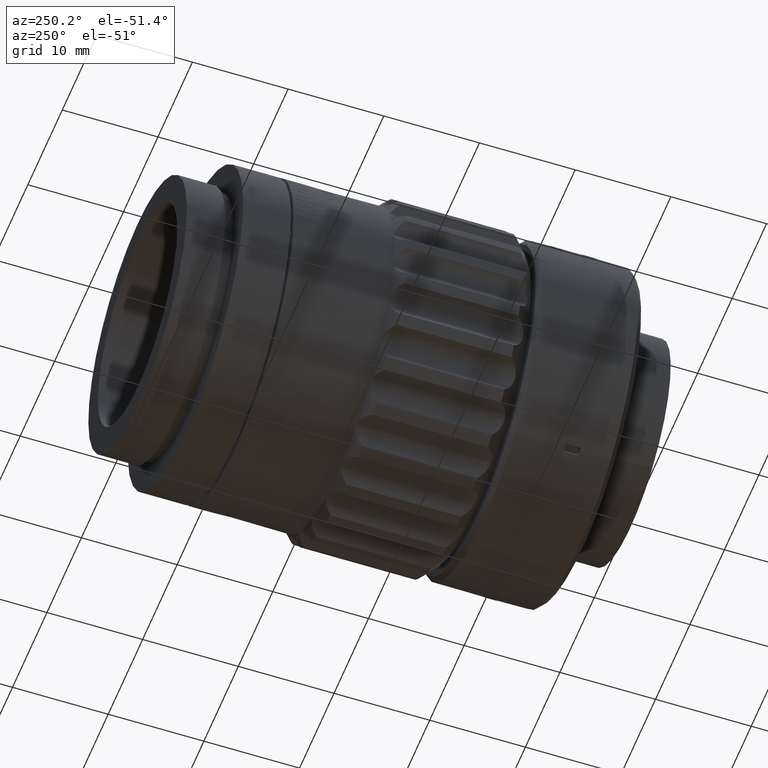
[diagram: clean part render]
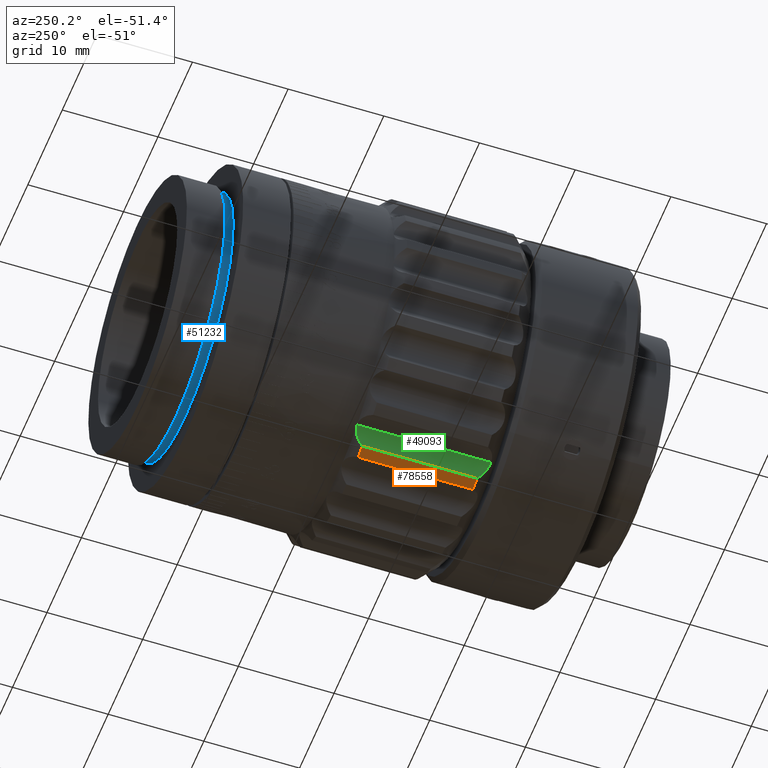
[diagram: same view with three faces highlighted in distinct colors, each labeled with its STEP entity id]
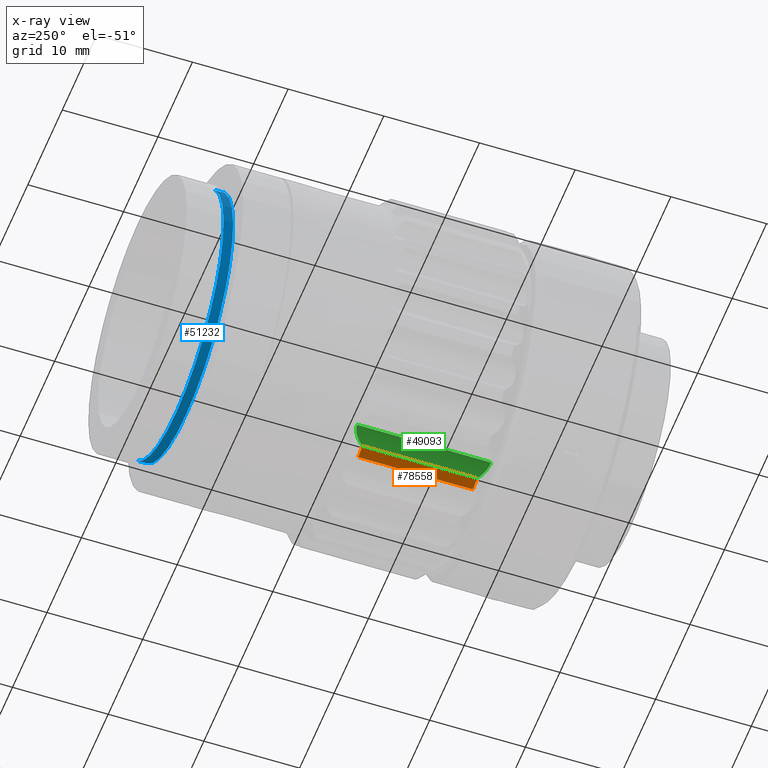
[diagram: x-ray of the same camera — body ghosted, the three highlighted faces saturated]
A machine part, auxiliary view with three faces highlighted in distinct colors.
The next image is the same camera in x-ray (body ghosted, the three faces saturated) — at least one of them is partly hidden behind the body in this view.
Their STEP definitions:

[orange] entity #78558 — the highlighted cylindrical surface (partial cylindrical patch) has radius 17.75 mm, axis along (-0, -1, 0).
#14481 = DIRECTION ( 'NONE',  ( 0.0000000000000000000, 0.0000000000000000000, 1.000000000000000000 ) ) ;
#14629 = ORIENTED_EDGE ( 'NONE', *, *, #19718, .T. ) ;
#17919 = CARTESIAN_POINT ( 'NONE',  ( 0.0000000000000000000, -15.21457821189761400, 0.0000000000000000000 ) ) ;
#17928 = CARTESIAN_POINT ( 'NONE',  ( -14.46100386837101900, -15.21457821189761400, 10.29280657153133100 ) ) ;
#18348 = CARTESIAN_POINT ( 'NONE',  ( -13.68487090487563900, -15.21457821189761400, 11.30428274225695000 ) ) ;
#19718 = EDGE_CURVE ( 'NONE', #49602, #95844, #38759, .T. ) ;
#21553 = EDGE_CURVE ( 'NONE', #33140, #95844, #64872, .T. ) ;
#23641 = ORIENTED_EDGE ( 'NONE', *, *, #90402, .T. ) ;
#24560 = AXIS2_PLACEMENT_3D ( 'NONE', #17919, #93265, #68387 ) ;
#26183 = CYLINDRICAL_SURFACE ( 'NONE', #37108, 17.75000000000000400 ) ;
#26899 = CARTESIAN_POINT ( 'NONE',  ( 0.0000000000000000000, -13.71457821189758900, 0.0000000000000000000 ) ) ;
#31313 = DIRECTION ( 'NONE',  ( 0.0000000000000000000, 1.000000000000000000, 0.0000000000000000000 ) ) ;
#32461 = DIRECTION ( 'NONE',  ( 0.0000000000000000000, -1.000000000000000000, -0.0000000000000000000 ) ) ;
#32747 = DIRECTION ( 'NONE',  ( 0.0000000000000000000, -1.000000000000000000, 0.0000000000000000000 ) ) ;
#33140 = VERTEX_POINT ( 'NONE', #101490 ) ;
#33773 = CIRCLE ( 'NONE', #73951, 17.75000000000000400 ) ;
#37108 = AXIS2_PLACEMENT_3D ( 'NONE', #26899, #32747, #94567 ) ;
#38759 = CIRCLE ( 'NONE', #24560, 17.75000000000000400 ) ;
#40162 = CARTESIAN_POINT ( 'NONE',  ( -13.68487090487564500, -15.71457821189758300, 11.30428274225694300 ) ) ;
#49593 = CARTESIAN_POINT ( 'NONE',  ( -13.68487090487564500, -27.21457821189756700, 11.30428274225694300 ) ) ;
#49602 = VERTEX_POINT ( 'NONE', #18348 ) ;
#49723 = ORIENTED_EDGE ( 'NONE', *, *, #96199, .F. ) ;
#56678 = DIRECTION ( 'NONE',  ( -0.0000000000000000000, 1.000000000000000000, 0.0000000000000000000 ) ) ;
#61988 = CARTESIAN_POINT ( 'NONE',  ( -14.46100386837101800, -15.71457821189758300, 10.29280657153133300 ) ) ;
#64872 = LINE ( 'NONE', #61988, #101487 ) ;
#65086 = LINE ( 'NONE', #40162, #106932 ) ;
#68387 = DIRECTION ( 'NONE',  ( 0.0000000000000000000, 0.0000000000000000000, -1.000000000000000000 ) ) ;
#73951 = AXIS2_PLACEMENT_3D ( 'NONE', #98948, #31313, #14481 ) ;
#78558 = ADVANCED_FACE ( 'NONE', ( #86350 ), #26183, .T. ) ;
#85052 = VERTEX_POINT ( 'NONE', #49593 ) ;
#86350 = FACE_OUTER_BOUND ( 'NONE', #102177, .T. ) ;
#89488 = ORIENTED_EDGE ( 'NONE', *, *, #21553, .F. ) ;
#90402 = EDGE_CURVE ( 'NONE', #33140, #85052, #33773, .T. ) ;
#93265 = DIRECTION ( 'NONE',  ( -0.0000000000000000000, -1.000000000000000000, -0.0000000000000000000 ) ) ;
#94567 = DIRECTION ( 'NONE',  ( 0.0000000000000000000, 0.0000000000000000000, -1.000000000000000000 ) ) ;
#95844 = VERTEX_POINT ( 'NONE', #17928 ) ;
#96199 = EDGE_CURVE ( 'NONE', #49602, #85052, #65086, .T. ) ;
#98948 = CARTESIAN_POINT ( 'NONE',  ( 0.0000000000000000000, -27.21457821189756700, 0.0000000000000000000 ) ) ;
#101487 = VECTOR ( 'NONE', #56678, 1000.000000000000000 ) ;
#101490 = CARTESIAN_POINT ( 'NONE',  ( -14.46100386837101800, -27.21457821189756700, 10.29280657153133300 ) ) ;
#102177 = EDGE_LOOP ( 'NONE', ( #49723, #14629, #89488, #23641 ) ) ;
#106932 = VECTOR ( 'NONE', #32461, 1000.000000000000000 ) ;

[blue] entity #51232 — the highlighted cylindrical surface (partial cylindrical patch) has radius 13.85 mm, axis along (0, 1, 0).
#2826 = CARTESIAN_POINT ( 'NONE',  ( 0.0000000000000000000, 18.51240201808208100, 0.0000000000000000000 ) ) ;
#4788 = DIRECTION ( 'NONE',  ( -0.0000000000000000000, 1.000000000000000000, -0.0000000000000000000 ) ) ;
#8420 = DIRECTION ( 'NONE',  ( -0.0000000000000000000, 1.000000000000000000, -0.0000000000000000000 ) ) ;
#9976 = CIRCLE ( 'NONE', #89678, 13.85000000000000000 ) ;
#10517 = DIRECTION ( 'NONE',  ( 0.0000000000000000000, 0.0000000000000000000, 1.000000000000000000 ) ) ;
#15574 = DIRECTION ( 'NONE',  ( -0.0000000000000000000, 1.000000000000000000, -0.0000000000000000000 ) ) ;
#18517 = DIRECTION ( 'NONE',  ( 0.0000000000000000000, 0.0000000000000000000, 1.000000000000000000 ) ) ;
#18820 = EDGE_CURVE ( 'NONE', #92552, #99196, #72861, .T. ) ;
#18879 = DIRECTION ( 'NONE',  ( -0.0000000000000000000, 1.000000000000000000, -0.0000000000000000000 ) ) ;
#19379 = ORIENTED_EDGE ( 'NONE', *, *, #33405, .F. ) ;
#20398 = DIRECTION ( 'NONE',  ( -0.0000000000000000000, 1.000000000000000000, -0.0000000000000000000 ) ) ;
#20779 = CARTESIAN_POINT ( 'NONE',  ( 1.696135816819084000E-015, 19.51240201808208100, -13.85000000000000000 ) ) ;
#24357 = CARTESIAN_POINT ( 'NONE',  ( 1.696135816819084200E-015, 18.51240201808208100, -13.85000000000000100 ) ) ;
#33405 = EDGE_CURVE ( 'NONE', #49858, #50922, #64594, .T. ) ;
#36808 = FACE_OUTER_BOUND ( 'NONE', #85866, .T. ) ;
#37767 = ORIENTED_EDGE ( 'NONE', *, *, #94307, .T. ) ;
#41903 = AXIS2_PLACEMENT_3D ( 'NONE', #59848, #18879, #18517 ) ;
#42588 = AXIS2_PLACEMENT_3D ( 'NONE', #2826, #20398, #10517 ) ;
#45352 = CARTESIAN_POINT ( 'NONE',  ( 0.0000000000000000000, 19.51240201808208100, 13.85000000000000000 ) ) ;
#49858 = VERTEX_POINT ( 'NONE', #99071 ) ;
#50922 = VERTEX_POINT ( 'NONE', #45352 ) ;
#51232 = ADVANCED_FACE ( 'NONE', ( #36808 ), #59041, .T. ) ;
#58584 = CARTESIAN_POINT ( 'NONE',  ( 0.0000000000000000000, 19.51240201808208100, 0.0000000000000000000 ) ) ;
#59041 = CYLINDRICAL_SURFACE ( 'NONE', #41903, 13.85000000000000100 ) ;
#59848 = CARTESIAN_POINT ( 'NONE',  ( 0.0000000000000000000, 27.76768902714551100, 0.0000000000000000000 ) ) ;
#64594 = LINE ( 'NONE', #104632, #94741 ) ;
#66259 = DIRECTION ( 'NONE',  ( 0.0000000000000000000, 0.0000000000000000000, 1.000000000000000000 ) ) ;
#72861 = LINE ( 'NONE', #73745, #83329 ) ;
#73745 = CARTESIAN_POINT ( 'NONE',  ( 1.696135816819084200E-015, 27.76768902714551100, -13.85000000000000100 ) ) ;
#79908 = ORIENTED_EDGE ( 'NONE', *, *, #18820, .T. ) ;
#83329 = VECTOR ( 'NONE', #15574, 1000.000000000000000 ) ;
#85866 = EDGE_LOOP ( 'NONE', ( #37767, #79908, #90996, #19379 ) ) ;
#89678 = AXIS2_PLACEMENT_3D ( 'NONE', #58584, #8420, #66259 ) ;
#90996 = ORIENTED_EDGE ( 'NONE', *, *, #98890, .F. ) ;
#91450 = CIRCLE ( 'NONE', #42588, 13.85000000000000100 ) ;
#92552 = VERTEX_POINT ( 'NONE', #24357 ) ;
#94307 = EDGE_CURVE ( 'NONE', #49858, #92552, #91450, .T. ) ;
#94741 = VECTOR ( 'NONE', #4788, 1000.000000000000000 ) ;
#98890 = EDGE_CURVE ( 'NONE', #50922, #99196, #9976, .T. ) ;
#99071 = CARTESIAN_POINT ( 'NONE',  ( 0.0000000000000000000, 18.51240201808208100, 13.85000000000000100 ) ) ;
#99196 = VERTEX_POINT ( 'NONE', #20779 ) ;
#104632 = CARTESIAN_POINT ( 'NONE',  ( 0.0000000000000000000, 27.76768902714551100, 13.85000000000000100 ) ) ;

[green] entity #49093 — the highlighted cylindrical surface (edge-blend (fillet) strip) has radius 2 mm, axis along (0, -1, 0).
#72 = DIRECTION ( 'NONE',  ( 0.0000000000000000000, -1.000000000000000000, -0.0000000000000000000 ) ) ;
#2969 = VECTOR ( 'NONE', #6910, 1000.000000000000000 ) ;
#3323 = VERTEX_POINT ( 'NONE', #104542 ) ;
#3443 = CARTESIAN_POINT ( 'NONE',  ( -11.97830828733459400, -14.21457821189758700, 11.70976888241473000 ) ) ;
#6910 = DIRECTION ( 'NONE',  ( 0.0000000000000000000, -1.000000000000000000, -0.0000000000000000000 ) ) ;
#8048 = CARTESIAN_POINT ( 'NONE',  ( -12.37389645353067300, -28.09789642735480100, 11.46207549619611400 ) ) ;
#11135 = CARTESIAN_POINT ( 'NONE',  ( -11.84403858487468100, -14.21457821189758700, 11.84403858487463900 ) ) ;
#11852 = CARTESIAN_POINT ( 'NONE',  ( -13.09833012493180200, -14.73653600034824000, 11.25894887405860500 ) ) ;
#12417 = AXIS2_PLACEMENT_3D ( 'NONE', #50173, #72, #99207 ) ;
#16518 = CARTESIAN_POINT ( 'NONE',  ( -12.21392601354691000, -28.15453043203922300, 11.55011910756309800 ) ) ;
#18348 = CARTESIAN_POINT ( 'NONE',  ( -13.68487090487563900, -15.21457821189761400, 11.30428274225695000 ) ) ;
#19901 = CARTESIAN_POINT ( 'NONE',  ( -13.68487090487563900, -15.21457821189761400, 11.30428274225695000 ) ) ;
#20163 = ORIENTED_EDGE ( 'NONE', *, *, #63374, .T. ) ;
#23413 = CARTESIAN_POINT ( 'NONE',  ( -11.84403858487468100, -2.714578211897588300, 11.84403858487463900 ) ) ;
#28686 = CARTESIAN_POINT ( 'NONE',  ( -12.37313360358124500, -14.33096256588668800, 11.46246015406018300 ) ) ;
#29040 = CARTESIAN_POINT ( 'NONE',  ( -12.93904786792937000, -14.62764577598170500, 11.27698673400300000 ) ) ;
#32461 = DIRECTION ( 'NONE',  ( 0.0000000000000000000, -1.000000000000000000, -0.0000000000000000000 ) ) ;
#33333 = CARTESIAN_POINT ( 'NONE',  ( -12.13595866045166400, -28.17661992392367400, 11.60011940693261000 ) ) ;
#33679 = EDGE_CURVE ( 'NONE', #3323, #80602, #61860, .T. ) ;
#34385 = ORIENTED_EDGE ( 'NONE', *, *, #96199, .T. ) ;
#40162 = CARTESIAN_POINT ( 'NONE',  ( -13.68487090487564500, -15.71457821189758300, 11.30428274225694300 ) ) ;
#41754 = CARTESIAN_POINT ( 'NONE',  ( -11.98447882085257100, -28.20678417268107600, 11.71343877082518700 ) ) ;
#43129 = B_SPLINE_CURVE_WITH_KNOTS ( 'NONE', 3,
 ( #11135, #3443, #70384, #28686, #61968, #104010, #78070, #29040, #11852, #87221, #53914, #19901 ),
 .UNSPECIFIED., .F., .F.,
 ( 4, 2, 2, 2, 2, 4 ),
 ( 0.002265277880669160400, 0.002830728109696410200, 0.003113453224210035500, 0.003396178338723660800, 0.003961628567750910500, 0.004527078796778161200 ),
 .UNSPECIFIED. ) ;
#43678 = CARTESIAN_POINT ( 'NONE',  ( -11.84403858487468100, -28.21457821189758500, 11.84403858487463900 ) ) ;
#45956 = ORIENTED_EDGE ( 'NONE', *, *, #83801, .T. ) ;
#48704 = CARTESIAN_POINT ( 'NONE',  ( -12.69950880545588100, -27.94165989775724400, 11.33608834704158700 ) ) ;
#48753 = CYLINDRICAL_SURFACE ( 'NONE', #12417, 2.000000000000001300 ) ;
#49093 = ADVANCED_FACE ( 'NONE', ( #64401 ), #48753, .F. ) ;
#49593 = CARTESIAN_POINT ( 'NONE',  ( -13.68487090487564500, -27.21457821189756700, 11.30428274225694300 ) ) ;
#49602 = VERTEX_POINT ( 'NONE', #18348 ) ;
#50173 = CARTESIAN_POINT ( 'NONE',  ( -13.25825214724777900, -2.714578211897588300, 13.25825214724773300 ) ) ;
#53914 = CARTESIAN_POINT ( 'NONE',  ( -13.54504896007372500, -15.08733642313466700, 11.27375480040271100 ) ) ;
#58212 = CARTESIAN_POINT ( 'NONE',  ( -13.68487090487564500, -27.21457821189756700, 11.30428274225694300 ) ) ;
#61860 = LINE ( 'NONE', #23413, #2969 ) ;
#61968 = CARTESIAN_POINT ( 'NONE',  ( -12.45529939543882500, -14.36565298824325000, 11.42444366338295900 ) ) ;
#63374 = EDGE_CURVE ( 'NONE', #85052, #80602, #91663, .T. ) ;
#64401 = FACE_OUTER_BOUND ( 'NONE', #67998, .T. ) ;
#65086 = LINE ( 'NONE', #40162, #106932 ) ;
#65901 = CARTESIAN_POINT ( 'NONE',  ( -12.61859132567192900, -27.98511982904808100, 11.36130357298283000 ) ) ;
#66607 = CARTESIAN_POINT ( 'NONE',  ( -12.45617049723399100, -28.06311760304939500, 11.42406434694594900 ) ) ;
#67998 = EDGE_LOOP ( 'NONE', ( #76795, #45956, #34385, #20163 ) ) ;
#70384 = CARTESIAN_POINT ( 'NONE',  ( -12.13368139041777900, -14.24627218124597200, 11.59435446726949200 ) ) ;
#74330 = CARTESIAN_POINT ( 'NONE',  ( -12.94162110562566600, -27.79990188415146000, 11.27649132142821900 ) ) ;
#76795 = ORIENTED_EDGE ( 'NONE', *, *, #33679, .F. ) ;
#78070 = CARTESIAN_POINT ( 'NONE',  ( -12.69842160930630100, -14.48691178602993900, 11.33642599194598300 ) ) ;
#80602 = VERTEX_POINT ( 'NONE', #43678 ) ;
#83801 = EDGE_CURVE ( 'NONE', #3323, #49602, #43129, .T. ) ;
#85052 = VERTEX_POINT ( 'NONE', #49593 ) ;
#87221 = CARTESIAN_POINT ( 'NONE',  ( -13.40024516973685400, -14.96573169895844300, 11.25759560176802400 ) ) ;
#91154 = CARTESIAN_POINT ( 'NONE',  ( -13.54501989460106300, -27.34184645103451700, 11.27374845440988000 ) ) ;
#91663 = B_SPLINE_CURVE_WITH_KNOTS ( 'NONE', 3,
 ( #58212, #91154, #107573, #107940, #74330, #48704, #65901, #66607, #8048, #16518, #33333, #41754, #107207, #100235 ),
 .UNSPECIFIED., .F., .F.,
 ( 4, 2, 2, 2, 2, 2, 4 ),
 ( 2.966078197694905100E-007, 0.0005665419260321118300, 0.001132787244244454200, 0.001415909903350627900, 0.001699032562456801500, 0.001982155221562975600, 0.002265277880669149200 ),
 .UNSPECIFIED. ) ;
#96199 = EDGE_CURVE ( 'NONE', #49602, #85052, #65086, .T. ) ;
#99207 = DIRECTION ( 'NONE',  ( 0.7071067811865489100, 0.0000000000000000000, -0.7071067811865463500 ) ) ;
#100235 = CARTESIAN_POINT ( 'NONE',  ( -11.84403858487468100, -28.21457821189758500, 11.84403858487463900 ) ) ;
#104010 = CARTESIAN_POINT ( 'NONE',  ( -12.61776465523711500, -14.44360746031680200, 11.36158073403197500 ) ) ;
#104542 = CARTESIAN_POINT ( 'NONE',  ( -11.84403858487468100, -14.21457821189758700, 11.84403858487463900 ) ) ;
#106932 = VECTOR ( 'NONE', #32461, 1000.000000000000000 ) ;
#107207 = CARTESIAN_POINT ( 'NONE',  ( -11.91126783556088700, -28.21457821189759200, 11.77680933418843900 ) ) ;
#107573 = CARTESIAN_POINT ( 'NONE',  ( -13.40045162805329000, -27.46322429761790200, 11.25765743798607200 ) ) ;
#107940 = CARTESIAN_POINT ( 'NONE',  ( -13.09978896358409600, -27.69155641625258500, 11.25887992014986600 ) ) ;